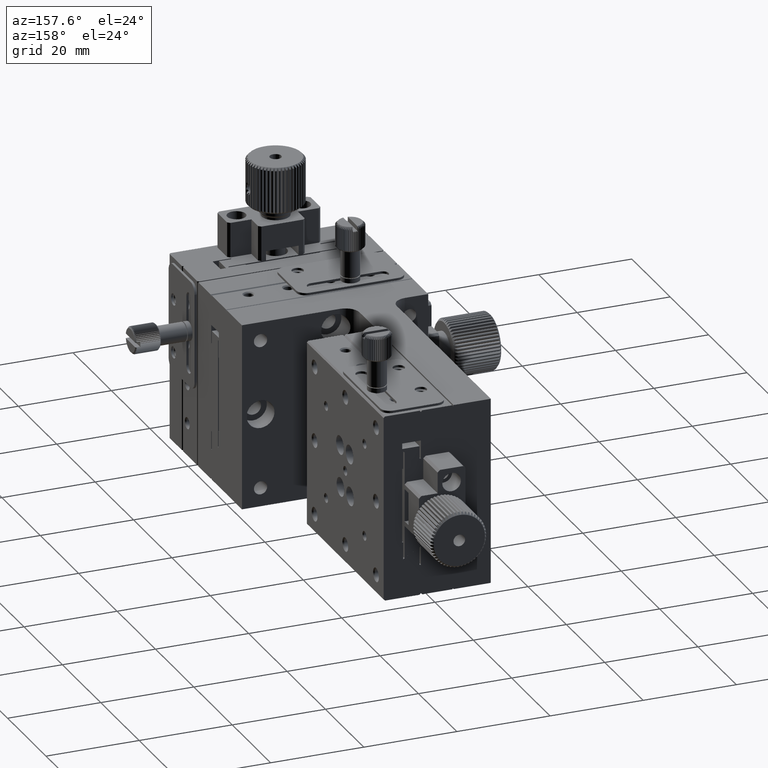
[diagram: clean part render]
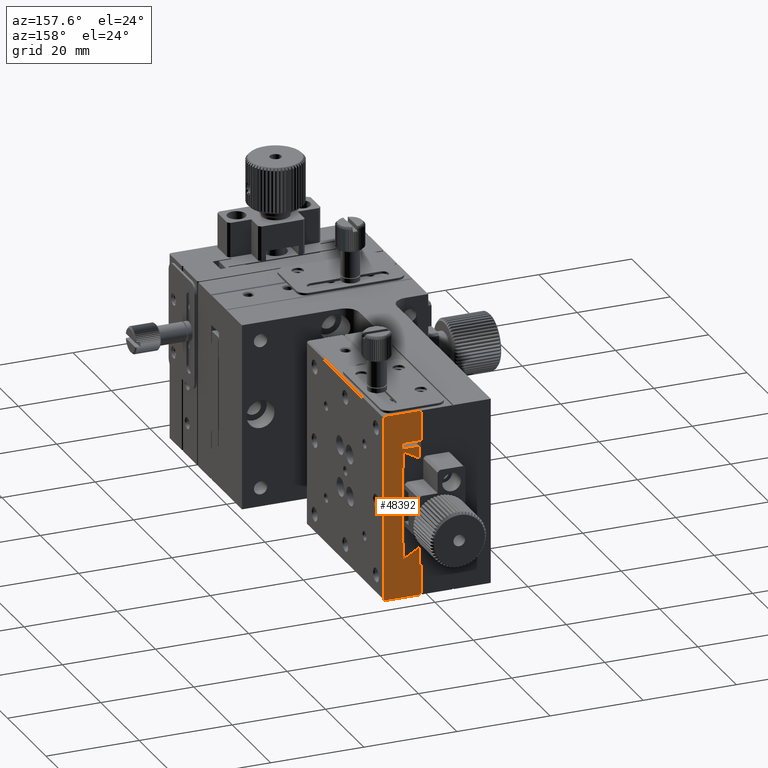
[diagram: same view with one face highlighted and labeled with its STEP entity id]
A machine part, auxiliary view. The second image highlights one B-rep face of the part: STEP entity #48392.
In plain terms, the highlighted planar face has unit normal (0, -1, 0).
Its self-contained STEP definition (entity closure, byte-faithful):
#42 = ORIENTED_EDGE ( 'NONE', *, *, #36420, .F. ) ;
#170 = EDGE_CURVE ( 'NONE', #13786, #22837, #59450, .T. ) ;
#216 = EDGE_CURVE ( 'NONE', #15886, #11975, #51239, .T. ) ;
#239 = LINE ( 'NONE', #52387, #12573 ) ;
#286 = CARTESIAN_POINT ( 'NONE',  ( 22.99999999999998934, 60.00000000000000000, -39.69999999999999574 ) ) ;
#609 = EDGE_CURVE ( 'NONE', #46035, #40876, #31128, .T. ) ;
#864 = ORIENTED_EDGE ( 'NONE', *, *, #42353, .F. ) ;
#884 = EDGE_CURVE ( 'NONE', #57447, #32884, #6447, .T. ) ;
#1130 = VECTOR ( 'NONE', #59083, 1000.000000000000000 ) ;
#1649 = DIRECTION ( 'NONE',  ( 0.000000000000000000, 0.000000000000000000, -1.000000000000000000 ) ) ;
#1690 = LINE ( 'NONE', #5943, #35333 ) ;
#1895 = CARTESIAN_POINT ( 'NONE',  ( 31.00000000000000000, 60.00000000000000000, -7.699999999999994849 ) ) ;
#1905 = LINE ( 'NONE', #44769, #13966 ) ;
#2584 = EDGE_CURVE ( 'NONE', #36913, #40876, #17124, .T. ) ;
#3305 = ORIENTED_EDGE ( 'NONE', *, *, #56994, .F. ) ;
#3384 = VERTEX_POINT ( 'NONE', #57707 ) ;
#3981 = ORIENTED_EDGE ( 'NONE', *, *, #216, .T. ) ;
#4057 = LINE ( 'NONE', #51177, #57163 ) ;
#4115 = DIRECTION ( 'NONE',  ( -1.000000000000000000, -0.000000000000000000, -0.000000000000000000 ) ) ;
#4674 = ORIENTED_EDGE ( 'NONE', *, *, #609, .T. ) ;
#5087 = ORIENTED_EDGE ( 'NONE', *, *, #170, .F. ) ;
#5293 = CARTESIAN_POINT ( 'NONE',  ( 31.00000000000000000, 60.00000000000000000, -0.3000000000000171418 ) ) ;
#5479 = CARTESIAN_POINT ( 'NONE',  ( 26.80000000000000782, 60.00000000000000000, -8.305999999999988503 ) ) ;
#5943 = CARTESIAN_POINT ( 'NONE',  ( 27.00000000000000000, 60.00000000000000000, -6.500000000000005329 ) ) ;
#6447 = LINE ( 'NONE', #1895, #21562 ) ;
#6932 = FACE_OUTER_BOUND ( 'NONE', #11248, .T. ) ;
#7172 = VERTEX_POINT ( 'NONE', #54646 ) ;
#7313 = EDGE_CURVE ( 'NONE', #37048, #3384, #27299, .T. ) ;
#7568 = CARTESIAN_POINT ( 'NONE',  ( 30.69999999999998508, 60.00000000000000000, -39.99999999999999289 ) ) ;
#7964 = ORIENTED_EDGE ( 'NONE', *, *, #15747, .T. ) ;
#8241 = ORIENTED_EDGE ( 'NONE', *, *, #30255, .F. ) ;
#8493 = DIRECTION ( 'NONE',  ( 0.8659960399471574588, 0.000000000000000000, 0.5000508562094870824 ) ) ;
#9098 = CARTESIAN_POINT ( 'NONE',  ( 23.30000000000000782, 60.00000000000000000, -10.32699999999999463 ) ) ;
#9972 = CARTESIAN_POINT ( 'NONE',  ( 31.00000000000000000, 60.00000000000000000, -6.500000000000005329 ) ) ;
#10581 = VERTEX_POINT ( 'NONE', #14566 ) ;
#10987 = CARTESIAN_POINT ( 'NONE',  ( 26.80000000000001137, 60.00000000000000000, -11.99999999999999467 ) ) ;
#11248 = EDGE_LOOP ( 'NONE', ( #864, #4674, #51841, #32313, #57706, #24534, #7964, #24335, #15556, #8241, #3981, #54824, #19848, #45940, #20936, #42, #16322, #24985, #36150, #3305, #15507, #5087 ) ) ;
#11260 = EDGE_CURVE ( 'NONE', #54453, #22837, #13228, .T. ) ;
#11722 = CARTESIAN_POINT ( 'NONE',  ( 30.99999999999999645, 60.00000000000000000, -0.3000000000000170308 ) ) ;
#11813 = PLANE ( 'NONE',  #19516 ) ;
#11975 = VERTEX_POINT ( 'NONE', #29292 ) ;
#12046 = EDGE_CURVE ( 'NONE', #24183, #59208, #239, .T. ) ;
#12573 = VECTOR ( 'NONE', #43294, 1000.000000000000000 ) ;
#12835 = CARTESIAN_POINT ( 'NONE',  ( 30.69999999999998863, 60.00000000000000000, -9.387402729165822738E-15 ) ) ;
#13005 = CARTESIAN_POINT ( 'NONE',  ( 23.30000000000000782, 60.00000000000000000, -33.49999999999999289 ) ) ;
#13228 = LINE ( 'NONE', #50309, #56125 ) ;
#13590 = EDGE_CURVE ( 'NONE', #18301, #11975, #21361, .T. ) ;
#13670 = VECTOR ( 'NONE', #44484, 1000.000000000000000 ) ;
#13786 = VERTEX_POINT ( 'NONE', #12835 ) ;
#13807 = DIRECTION ( 'NONE',  ( 0.000000000000000000, 0.000000000000000000, -1.000000000000000000 ) ) ;
#13966 = VECTOR ( 'NONE', #58722, 1000.000000000000000 ) ;
#14308 = EDGE_CURVE ( 'NONE', #57447, #3384, #1690, .T. ) ;
#14566 = CARTESIAN_POINT ( 'NONE',  ( 23.30000000000000782, 60.00000000000000000, -10.32699999999999463 ) ) ;
#15182 = DIRECTION ( 'NONE',  ( 0.000000000000000000, 0.000000000000000000, -1.000000000000000000 ) ) ;
#15507 = ORIENTED_EDGE ( 'NONE', *, *, #11260, .T. ) ;
#15556 = ORIENTED_EDGE ( 'NONE', *, *, #50682, .F. ) ;
#15747 = EDGE_CURVE ( 'NONE', #7172, #31279, #18489, .T. ) ;
#15857 = DIRECTION ( 'NONE',  ( 0.000000000000000000, 0.000000000000000000, -1.000000000000000000 ) ) ;
#15886 = VERTEX_POINT ( 'NONE', #42188 ) ;
#16322 = ORIENTED_EDGE ( 'NONE', *, *, #884, .F. ) ;
#16347 = VECTOR ( 'NONE', #19382, 1000.000000000000000 ) ;
#16366 = DIRECTION ( 'NONE',  ( 0.000000000000000000, -1.000000000000000000, 0.000000000000000000 ) ) ;
#16625 = VECTOR ( 'NONE', #59147, 1000.000000000000000 ) ;
#17055 = LINE ( 'NONE', #40172, #52000 ) ;
#17124 = LINE ( 'NONE', #21083, #47980 ) ;
#18122 = EDGE_CURVE ( 'NONE', #57909, #48557, #51332, .T. ) ;
#18301 = VERTEX_POINT ( 'NONE', #58789 ) ;
#18489 = LINE ( 'NONE', #13005, #27616 ) ;
#19382 = DIRECTION ( 'NONE',  ( 1.000000000000000000, 0.000000000000000000, 0.000000000000000000 ) ) ;
#19516 = AXIS2_PLACEMENT_3D ( 'NONE', #30337, #16366, #35199 ) ;
#19848 = ORIENTED_EDGE ( 'NONE', *, *, #51676, .T. ) ;
#20936 = ORIENTED_EDGE ( 'NONE', *, *, #21801, .F. ) ;
#21083 = CARTESIAN_POINT ( 'NONE',  ( 30.69999999999998508, 60.00000000000000000, -39.99999999999999289 ) ) ;
#21361 = LINE ( 'NONE', #57530, #13670 ) ;
#21562 = VECTOR ( 'NONE', #54668, 1000.000000000000000 ) ;
#21801 = EDGE_CURVE ( 'NONE', #10581, #24183, #32800, .T. ) ;
#22837 = VERTEX_POINT ( 'NONE', #48043 ) ;
#23481 = DIRECTION ( 'NONE',  ( 1.000000000000000000, 0.000000000000000000, 0.000000000000000000 ) ) ;
#23849 = DIRECTION ( 'NONE',  ( -0.7071067811865511255, 0.000000000000000000, 0.7071067811865440200 ) ) ;
#24183 = VERTEX_POINT ( 'NONE', #5479 ) ;
#24205 = DIRECTION ( 'NONE',  ( 0.000000000000000000, 0.000000000000000000, 1.000000000000000000 ) ) ;
#24335 = ORIENTED_EDGE ( 'NONE', *, *, #28907, .F. ) ;
#24534 = ORIENTED_EDGE ( 'NONE', *, *, #49288, .F. ) ;
#24985 = ORIENTED_EDGE ( 'NONE', *, *, #14308, .T. ) ;
#25580 = VERTEX_POINT ( 'NONE', #50363 ) ;
#26562 = CARTESIAN_POINT ( 'NONE',  ( 30.99999999999999645, 60.00000000000000000, -39.69999999999999574 ) ) ;
#26974 = CARTESIAN_POINT ( 'NONE',  ( 27.00000000000000000, 60.00000000000000000, -7.699999999999994849 ) ) ;
#27299 = LINE ( 'NONE', #9972, #16347 ) ;
#27351 = DIRECTION ( 'NONE',  ( -0.8659960399471572368, 0.000000000000000000, 0.5000508562094874154 ) ) ;
#27616 = VECTOR ( 'NONE', #40393, 1000.000000000000000 ) ;
#27893 = CARTESIAN_POINT ( 'NONE',  ( 22.99999999999999289, 60.00000000000000000, -39.70000000000000284 ) ) ;
#28128 = LINE ( 'NONE', #38159, #58464 ) ;
#28907 = EDGE_CURVE ( 'NONE', #32652, #31279, #1905, .T. ) ;
#29292 = CARTESIAN_POINT ( 'NONE',  ( 27.00000000000000000, 60.00000000000000000, -27.99999999999999645 ) ) ;
#29517 = DIRECTION ( 'NONE',  ( -1.000000000000000000, -0.000000000000000000, -0.000000000000000000 ) ) ;
#30255 = EDGE_CURVE ( 'NONE', #15886, #25580, #4057, .T. ) ;
#30337 = CARTESIAN_POINT ( 'NONE',  ( 31.00000000000000000, 60.00000000000000000, 4.898587196589409870E-15 ) ) ;
#31128 = LINE ( 'NONE', #26562, #1130 ) ;
#31215 = CARTESIAN_POINT ( 'NONE',  ( 23.30000000000000426, 60.00000000000000000, -29.67300000000000182 ) ) ;
#31279 = VERTEX_POINT ( 'NONE', #39985 ) ;
#31298 = LINE ( 'NONE', #53808, #43045 ) ;
#31801 = CARTESIAN_POINT ( 'NONE',  ( 27.00000000000000000, 60.00000000000000000, -27.99999999999999645 ) ) ;
#32313 = ORIENTED_EDGE ( 'NONE', *, *, #57749, .F. ) ;
#32652 = VERTEX_POINT ( 'NONE', #31215 ) ;
#32800 = LINE ( 'NONE', #9098, #46552 ) ;
#32884 = VERTEX_POINT ( 'NONE', #34496 ) ;
#32977 = LINE ( 'NONE', #5293, #48153 ) ;
#33360 = CARTESIAN_POINT ( 'NONE',  ( 23.00000000000000000, 60.00000000000000000, -6.500000000000005329 ) ) ;
#34496 = CARTESIAN_POINT ( 'NONE',  ( 23.30000000000000782, 60.00000000000000000, -7.699999999999994849 ) ) ;
#35199 = DIRECTION ( 'NONE',  ( 0.000000000000000000, 0.000000000000000000, -1.000000000000000000 ) ) ;
#35333 = VECTOR ( 'NONE', #24205, 1000.000000000000000 ) ;
#36150 = ORIENTED_EDGE ( 'NONE', *, *, #7313, .F. ) ;
#36373 = CARTESIAN_POINT ( 'NONE',  ( 31.00000000000000000, 60.00000000000000000, -9.250251154346389072E-15 ) ) ;
#36420 = EDGE_CURVE ( 'NONE', #32884, #10581, #28128, .T. ) ;
#36868 = LINE ( 'NONE', #55978, #56932 ) ;
#36913 = VERTEX_POINT ( 'NONE', #7568 ) ;
#37048 = VERTEX_POINT ( 'NONE', #33360 ) ;
#37154 = VECTOR ( 'NONE', #15182, 1000.000000000000000 ) ;
#38159 = CARTESIAN_POINT ( 'NONE',  ( 23.30000000000000782, 60.00000000000000000, 4.898587196589409870E-15 ) ) ;
#39260 = LINE ( 'NONE', #10987, #58381 ) ;
#39985 = CARTESIAN_POINT ( 'NONE',  ( 23.30000000000000782, 60.00000000000000000, -33.49999999999999289 ) ) ;
#40172 = CARTESIAN_POINT ( 'NONE',  ( 23.00000000000000000, 60.00000000000000000, 4.898587196589409870E-15 ) ) ;
#40393 = DIRECTION ( 'NONE',  ( 1.000000000000000000, 0.000000000000000000, 0.000000000000000000 ) ) ;
#40876 = VERTEX_POINT ( 'NONE', #45266 ) ;
#42118 = VECTOR ( 'NONE', #53337, 999.9999999999998863 ) ;
#42188 = CARTESIAN_POINT ( 'NONE',  ( 26.80000000000001137, 60.00000000000000000, -27.99999999999999645 ) ) ;
#42353 = EDGE_CURVE ( 'NONE', #46035, #13786, #32977, .T. ) ;
#43045 = VECTOR ( 'NONE', #27351, 1000.000000000000114 ) ;
#43294 = DIRECTION ( 'NONE',  ( 0.000000000000000000, 0.000000000000000000, -1.000000000000000000 ) ) ;
#44484 = DIRECTION ( 'NONE',  ( 0.000000000000000000, 0.000000000000000000, -1.000000000000000000 ) ) ;
#44769 = CARTESIAN_POINT ( 'NONE',  ( 23.30000000000000782, 60.00000000000000000, 4.898587196589409870E-15 ) ) ;
#45266 = CARTESIAN_POINT ( 'NONE',  ( 30.99999999999999289, 60.00000000000000000, -39.69999999999999574 ) ) ;
#45775 = DIRECTION ( 'NONE',  ( 0.7071067811865470176, 0.000000000000000000, 0.7071067811865480168 ) ) ;
#45940 = ORIENTED_EDGE ( 'NONE', *, *, #12046, .F. ) ;
#46035 = VERTEX_POINT ( 'NONE', #11722 ) ;
#46552 = VECTOR ( 'NONE', #8493, 1000.000000000000114 ) ;
#47980 = VECTOR ( 'NONE', #49347, 1000.000000000000114 ) ;
#48043 = CARTESIAN_POINT ( 'NONE',  ( 23.30000000000000782, 60.00000000000000000, -8.632739033822088781E-15 ) ) ;
#48153 = VECTOR ( 'NONE', #23849, 1000.000000000000000 ) ;
#48392 = ADVANCED_FACE ( 'NONE', ( #6932 ), #11813, .F. ) ;
#48557 = VERTEX_POINT ( 'NONE', #27893 ) ;
#49288 = EDGE_CURVE ( 'NONE', #7172, #48557, #52259, .T. ) ;
#49338 = CARTESIAN_POINT ( 'NONE',  ( 26.80000000000001137, 60.00000000000000000, -11.99999999999999467 ) ) ;
#49347 = DIRECTION ( 'NONE',  ( 0.7071067811865680008, 0.000000000000000000, 0.7071067811865270336 ) ) ;
#50309 = CARTESIAN_POINT ( 'NONE',  ( 23.30000000000000782, 60.00000000000000000, -8.369289483269090134E-15 ) ) ;
#50363 = CARTESIAN_POINT ( 'NONE',  ( 26.80000000000001137, 60.00000000000000000, -31.69399999999999196 ) ) ;
#50682 = EDGE_CURVE ( 'NONE', #25580, #32652, #31298, .T. ) ;
#51177 = CARTESIAN_POINT ( 'NONE',  ( 26.80000000000001137, 60.00000000000000000, 4.898587196589409870E-15 ) ) ;
#51239 = LINE ( 'NONE', #31801, #16625 ) ;
#51332 = LINE ( 'NONE', #286, #42118 ) ;
#51378 = CARTESIAN_POINT ( 'NONE',  ( 23.00000000000000000, 60.00000000000000000, 4.898587196589409870E-15 ) ) ;
#51676 = EDGE_CURVE ( 'NONE', #18301, #59208, #39260, .T. ) ;
#51841 = ORIENTED_EDGE ( 'NONE', *, *, #2584, .F. ) ;
#52000 = VECTOR ( 'NONE', #15857, 1000.000000000000000 ) ;
#52259 = LINE ( 'NONE', #51378, #37154 ) ;
#52321 = CARTESIAN_POINT ( 'NONE',  ( 23.00000000000000000, 60.00000000000000000, -0.3000000000000199174 ) ) ;
#52387 = CARTESIAN_POINT ( 'NONE',  ( 26.80000000000001137, 60.00000000000000000, 4.898587196589409870E-15 ) ) ;
#53337 = DIRECTION ( 'NONE',  ( -0.7071067811865510144, 0.000000000000000000, 0.7071067811865441310 ) ) ;
#53808 = CARTESIAN_POINT ( 'NONE',  ( 26.80000000000001137, 60.00000000000000000, -31.69399999999999196 ) ) ;
#54453 = VERTEX_POINT ( 'NONE', #52321 ) ;
#54646 = CARTESIAN_POINT ( 'NONE',  ( 23.00000000000000000, 60.00000000000000000, -33.49999999999999289 ) ) ;
#54668 = DIRECTION ( 'NONE',  ( -1.000000000000000000, -0.000000000000000000, -0.000000000000000000 ) ) ;
#54824 = ORIENTED_EDGE ( 'NONE', *, *, #13590, .F. ) ;
#55978 = CARTESIAN_POINT ( 'NONE',  ( 31.00000000000000000, 60.00000000000000000, -39.99999999999999289 ) ) ;
#56125 = VECTOR ( 'NONE', #45775, 1000.000000000000000 ) ;
#56932 = VECTOR ( 'NONE', #23481, 1000.000000000000000 ) ;
#56994 = EDGE_CURVE ( 'NONE', #54453, #37048, #17055, .T. ) ;
#57163 = VECTOR ( 'NONE', #13807, 1000.000000000000000 ) ;
#57168 = CARTESIAN_POINT ( 'NONE',  ( 23.30000000000000426, 60.00000000000000000, -40.00000000000000000 ) ) ;
#57447 = VERTEX_POINT ( 'NONE', #26974 ) ;
#57530 = CARTESIAN_POINT ( 'NONE',  ( 27.00000000000000000, 60.00000000000000000, 4.898587196589409870E-15 ) ) ;
#57706 = ORIENTED_EDGE ( 'NONE', *, *, #18122, .T. ) ;
#57707 = CARTESIAN_POINT ( 'NONE',  ( 27.00000000000000000, 60.00000000000000000, -6.500000000000005329 ) ) ;
#57749 = EDGE_CURVE ( 'NONE', #57909, #36913, #36868, .T. ) ;
#57909 = VERTEX_POINT ( 'NONE', #57168 ) ;
#58381 = VECTOR ( 'NONE', #29517, 1000.000000000000000 ) ;
#58464 = VECTOR ( 'NONE', #1649, 1000.000000000000000 ) ;
#58722 = DIRECTION ( 'NONE',  ( 0.000000000000000000, 0.000000000000000000, -1.000000000000000000 ) ) ;
#58789 = CARTESIAN_POINT ( 'NONE',  ( 27.00000000000000000, 60.00000000000000000, -11.99999999999999467 ) ) ;
#59083 = DIRECTION ( 'NONE',  ( -1.230518249841690057E-16, -0.000000000000000000, -1.000000000000000000 ) ) ;
#59147 = DIRECTION ( 'NONE',  ( 1.000000000000000000, 0.000000000000000000, 0.000000000000000000 ) ) ;
#59208 = VERTEX_POINT ( 'NONE', #49338 ) ;
#59442 = VECTOR ( 'NONE', #4115, 1000.000000000000000 ) ;
#59450 = LINE ( 'NONE', #36373, #59442 ) ;